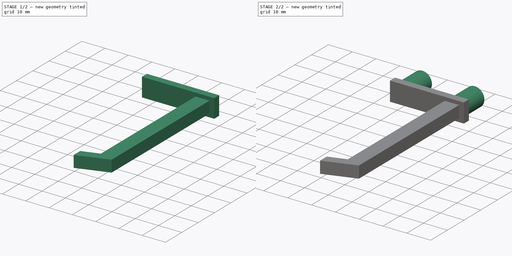
[diagram: build sequence overview — one tinted view per stage of 2, left to right]
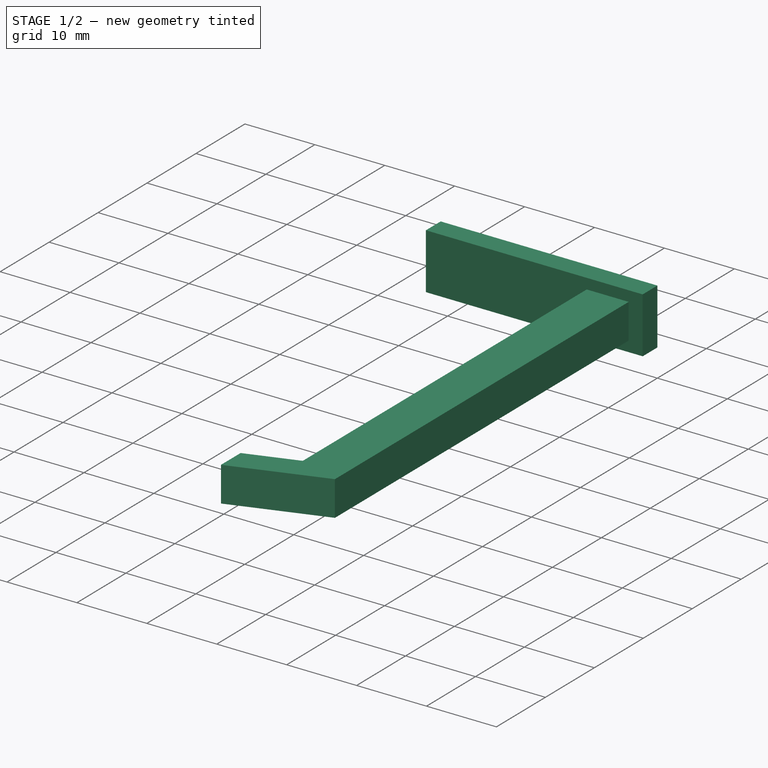
[diagram: stage 1 of 2 — iso view after this stage's code; geometry added in this stage tinted green]
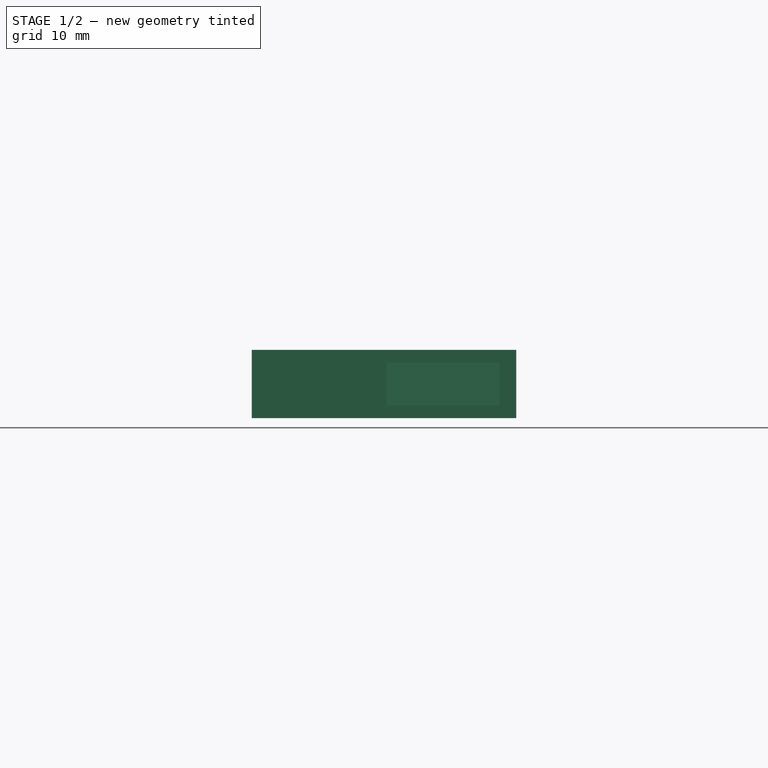
[diagram: stage 1 of 2 — front view after this stage's code; geometry added in this stage tinted green]
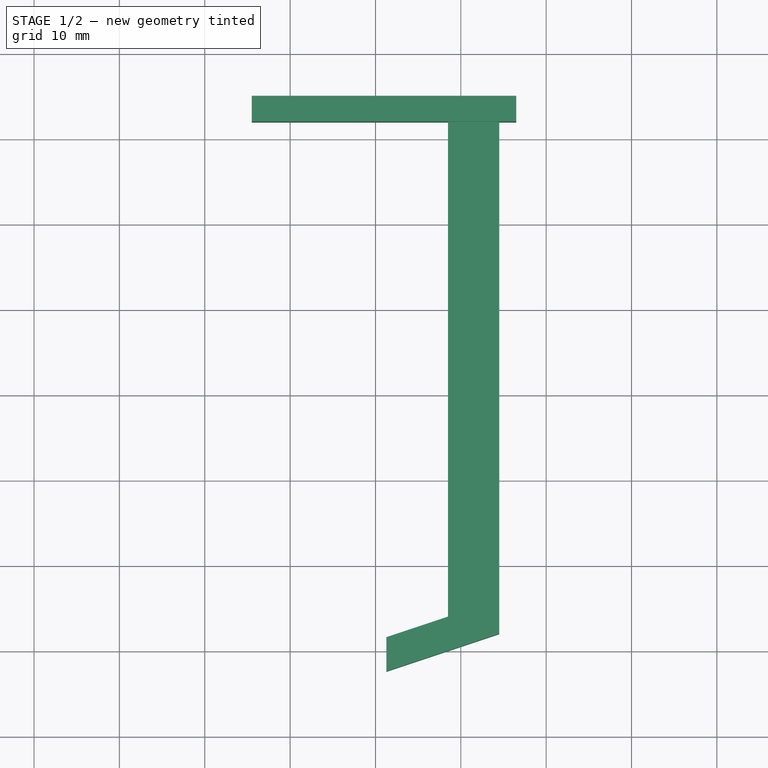
[diagram: stage 1 of 2 — top view after this stage's code; geometry added in this stage tinted green]
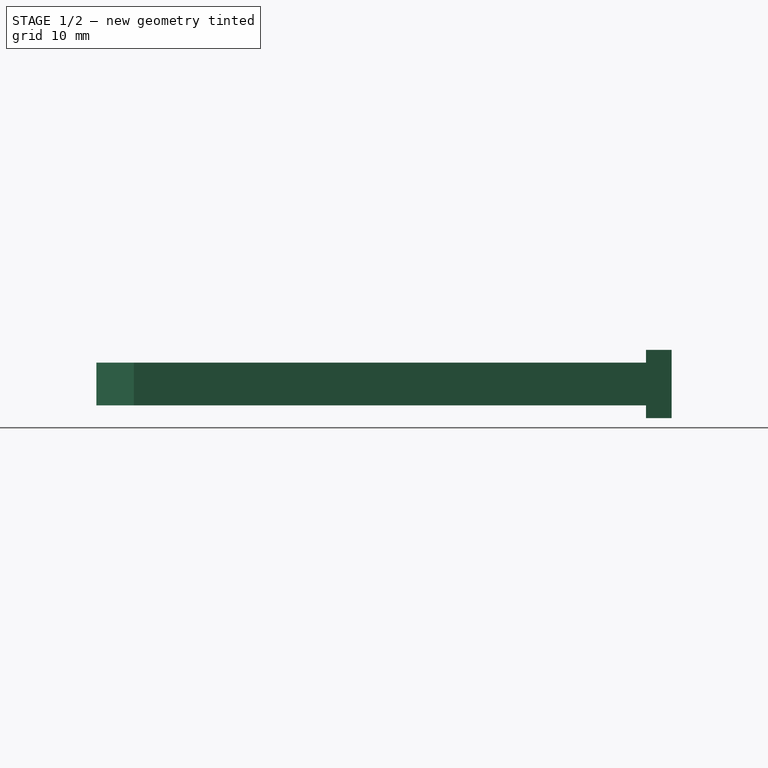
[diagram: stage 1 of 2 — right view after this stage's code; geometry added in this stage tinted green]
FCSTD DOCUMENT  (FreeCAD 0.15R4671 (Git))
Label: Hooks_V3
License: All rights reserved
LicenseURL: http://en.wikipedia.org/wiki/All_rights_reserved
objects: Part::Cylinder×2, Part::Box×1, Sketcher::SketchObject×1, PartDesign::Pad×1
note: 6 computed .brp shape members not serialized (recipe doc carries the construction recipe); baked Part::Feature solids carry a one-line shape summary decoded from their .brp

FEATURE [Part::Box] Box  label="Base"
  Height = 8
  Length = 31
  Placement = pos=(-4.5,-18,-4) rot=(0,0,1;0rad)
  Width = 3
FEATURE [Sketcher::SketchObject] Sketch
  sketch-geometry (6):
    g0: LineSegment StartX=18.4964 StartY=-18 StartZ=0 EndX=24.4964 EndY=-18 EndZ=0
    g1: LineSegment StartX=24.4964 StartY=-18 StartZ=0 EndX=24.4964 EndY=-78 EndZ=0
    g2: LineSegment StartX=24.4964 StartY=-78 StartZ=0 EndX=11.2833 EndY=-82.4044 EndZ=0
    g3: LineSegment StartX=11.2833 StartY=-82.4044 StartZ=0 EndX=11.2833 EndY=-78.4044 EndZ=0
    g4: LineSegment StartX=11.2833 StartY=-78.4044 StartZ=0 EndX=18.4964 EndY=-76 EndZ=0
    g5: LineSegment StartX=18.4964 StartY=-76 StartZ=0 EndX=18.4964 EndY=-18 EndZ=0
  constraints (16):
    c: Coincident(g0,g1)
    c: Coincident(g1,g2)
    c: Coincident(g2,g3)
    c: Coincident(g3,g4)
    c: Coincident(g4,g5)
    c: Coincident(g5,g0)
    c: Distance(g0) = 6
    c: Distance(g3) = 4
    c: Parallel(g3,g-2)
    c: Parallel(g-2,g5)
    c: Parallel(g5,g1)
    c: Parallel(g4,g2)
    c: Distance(g5) = 58
    c: Distance(g1) = 60
    c: Parallel(g0,g-1)
    c: DistanceY(g-1,g0) = -18
FEATURE [PartDesign::Pad] Pad
  Length = 5
  Length2 = 100
  Midplane = true
  Sketch = -> Sketch
  Type = 0
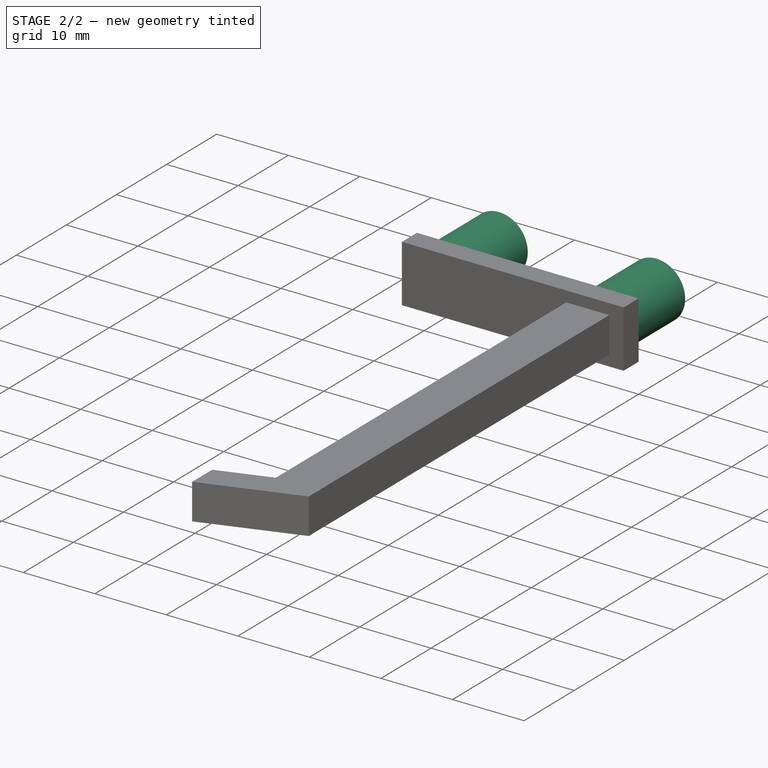
[diagram: stage 2 of 2 — iso view after this stage's code; geometry added in this stage tinted green]
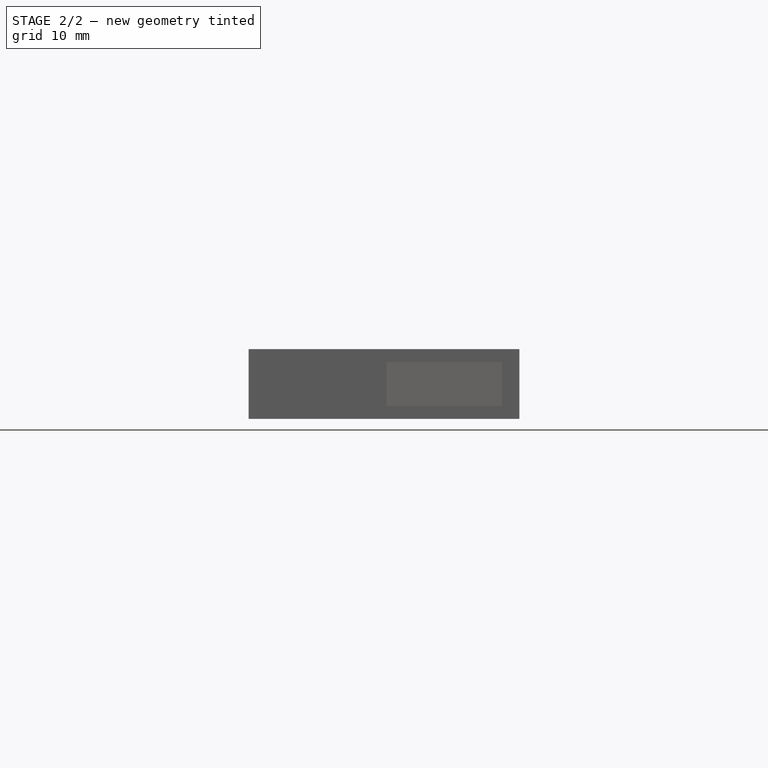
[diagram: stage 2 of 2 — front view after this stage's code; geometry added in this stage tinted green]
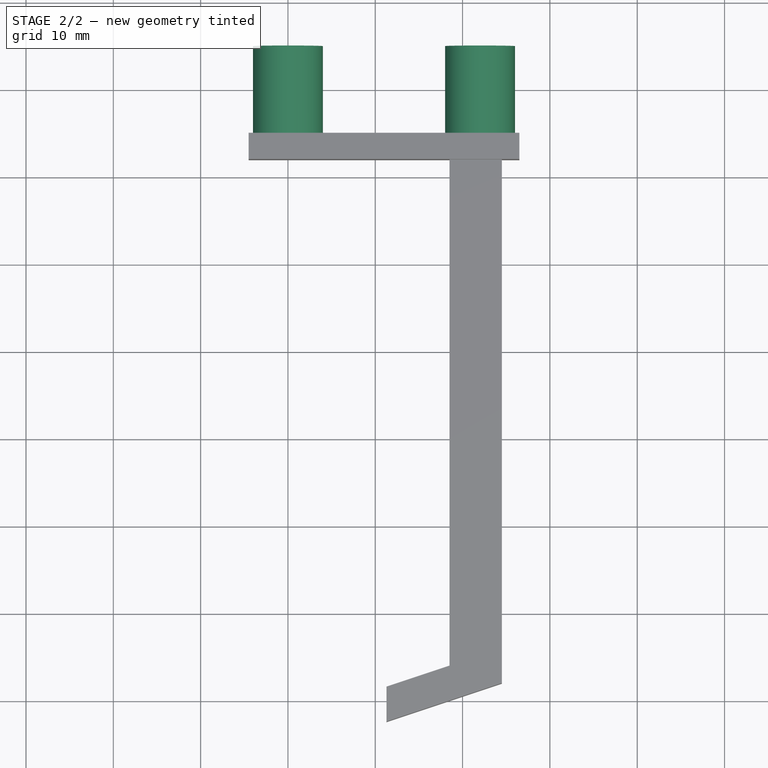
[diagram: stage 2 of 2 — top view after this stage's code; geometry added in this stage tinted green]
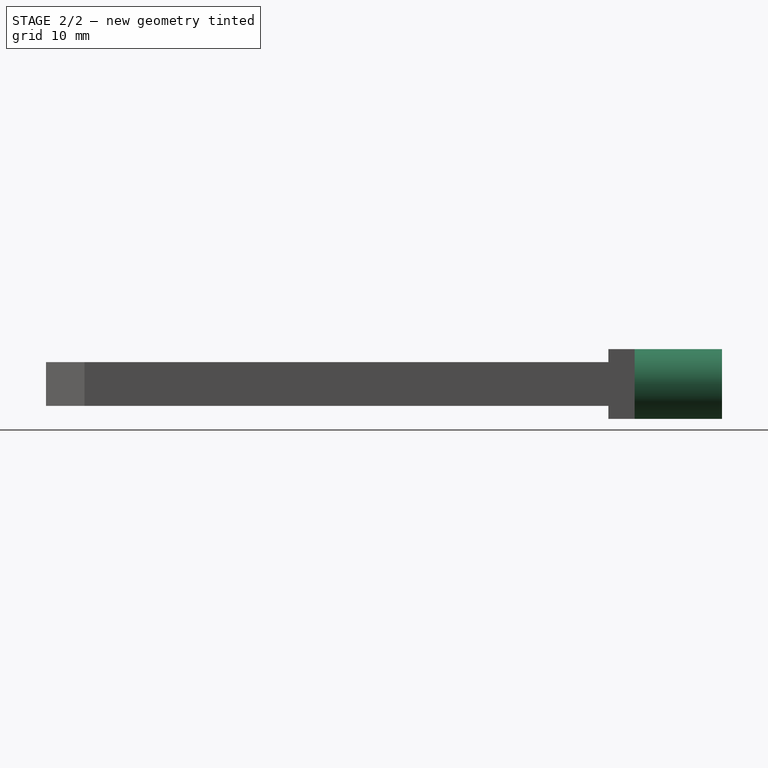
[diagram: stage 2 of 2 — right view after this stage's code; geometry added in this stage tinted green]
FEATURE [Part::Cylinder] Cylinder  label="Pin1"
  Angle = 360
  Height = 10
  Placement = pos=(0,-5,0) rot=(1,0,0;1.5708rad)
  Radius = 4
FEATURE [Part::Cylinder] Cylinder001  label="Pin2"
  Angle = 360
  Height = 10
  Placement = pos=(22,-5,0) rot=(1,0,0;1.5708rad)
  Radius = 4
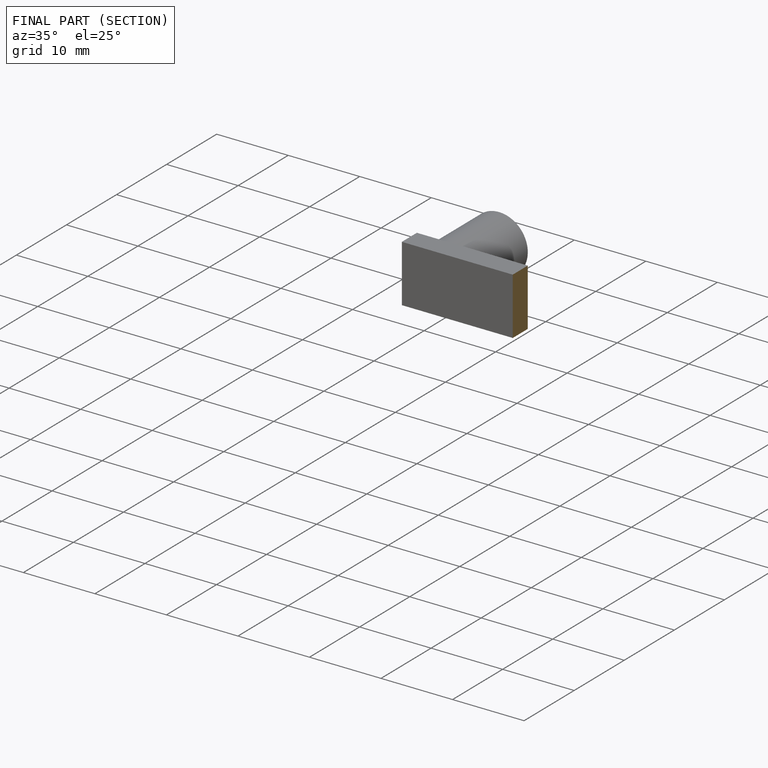
[diagram: finished part — half-section view (interior)]
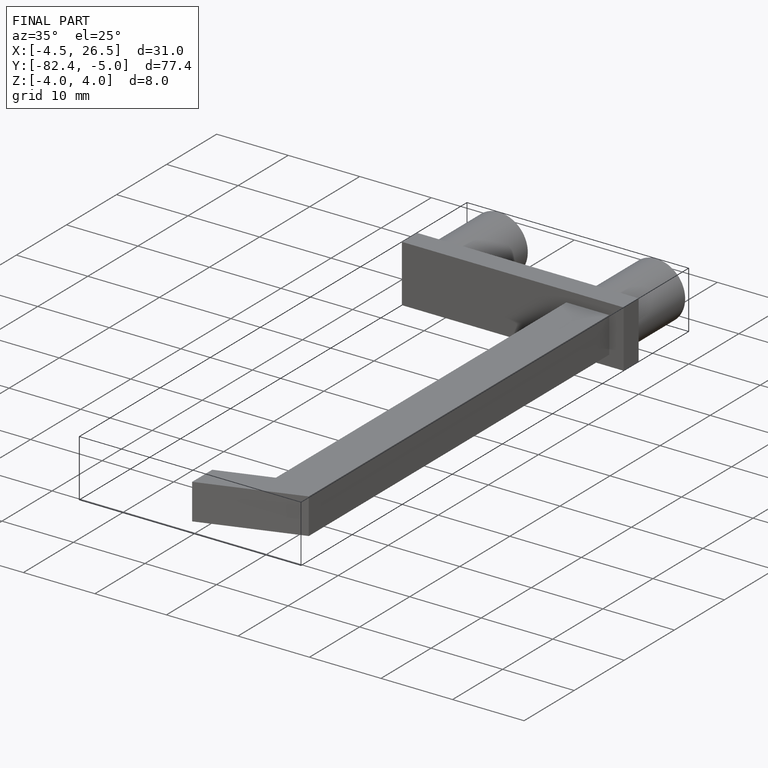
[diagram: finished part — iso view with bounding-box wireframe]
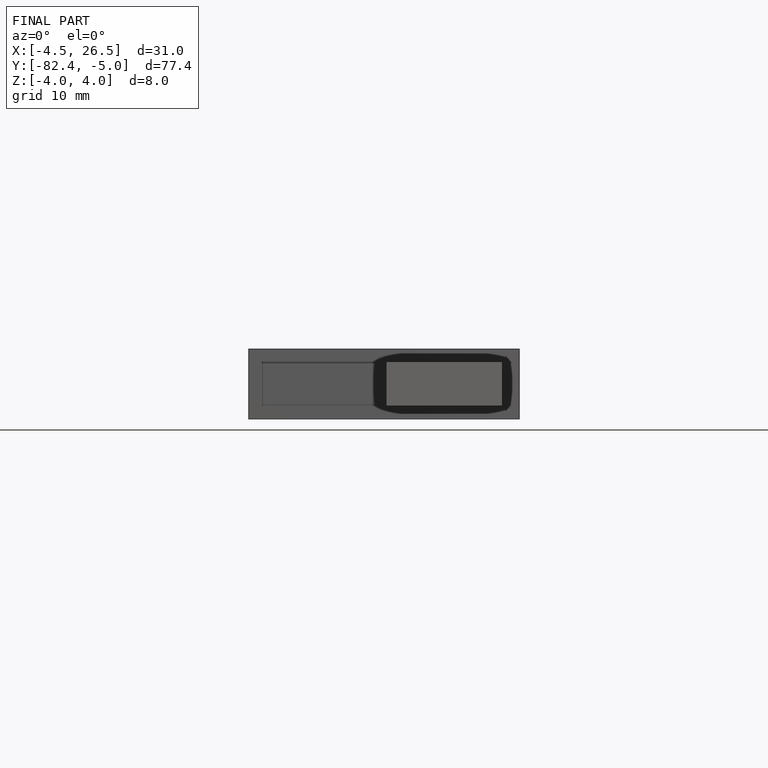
[diagram: finished part — front view with bounding-box wireframe]
